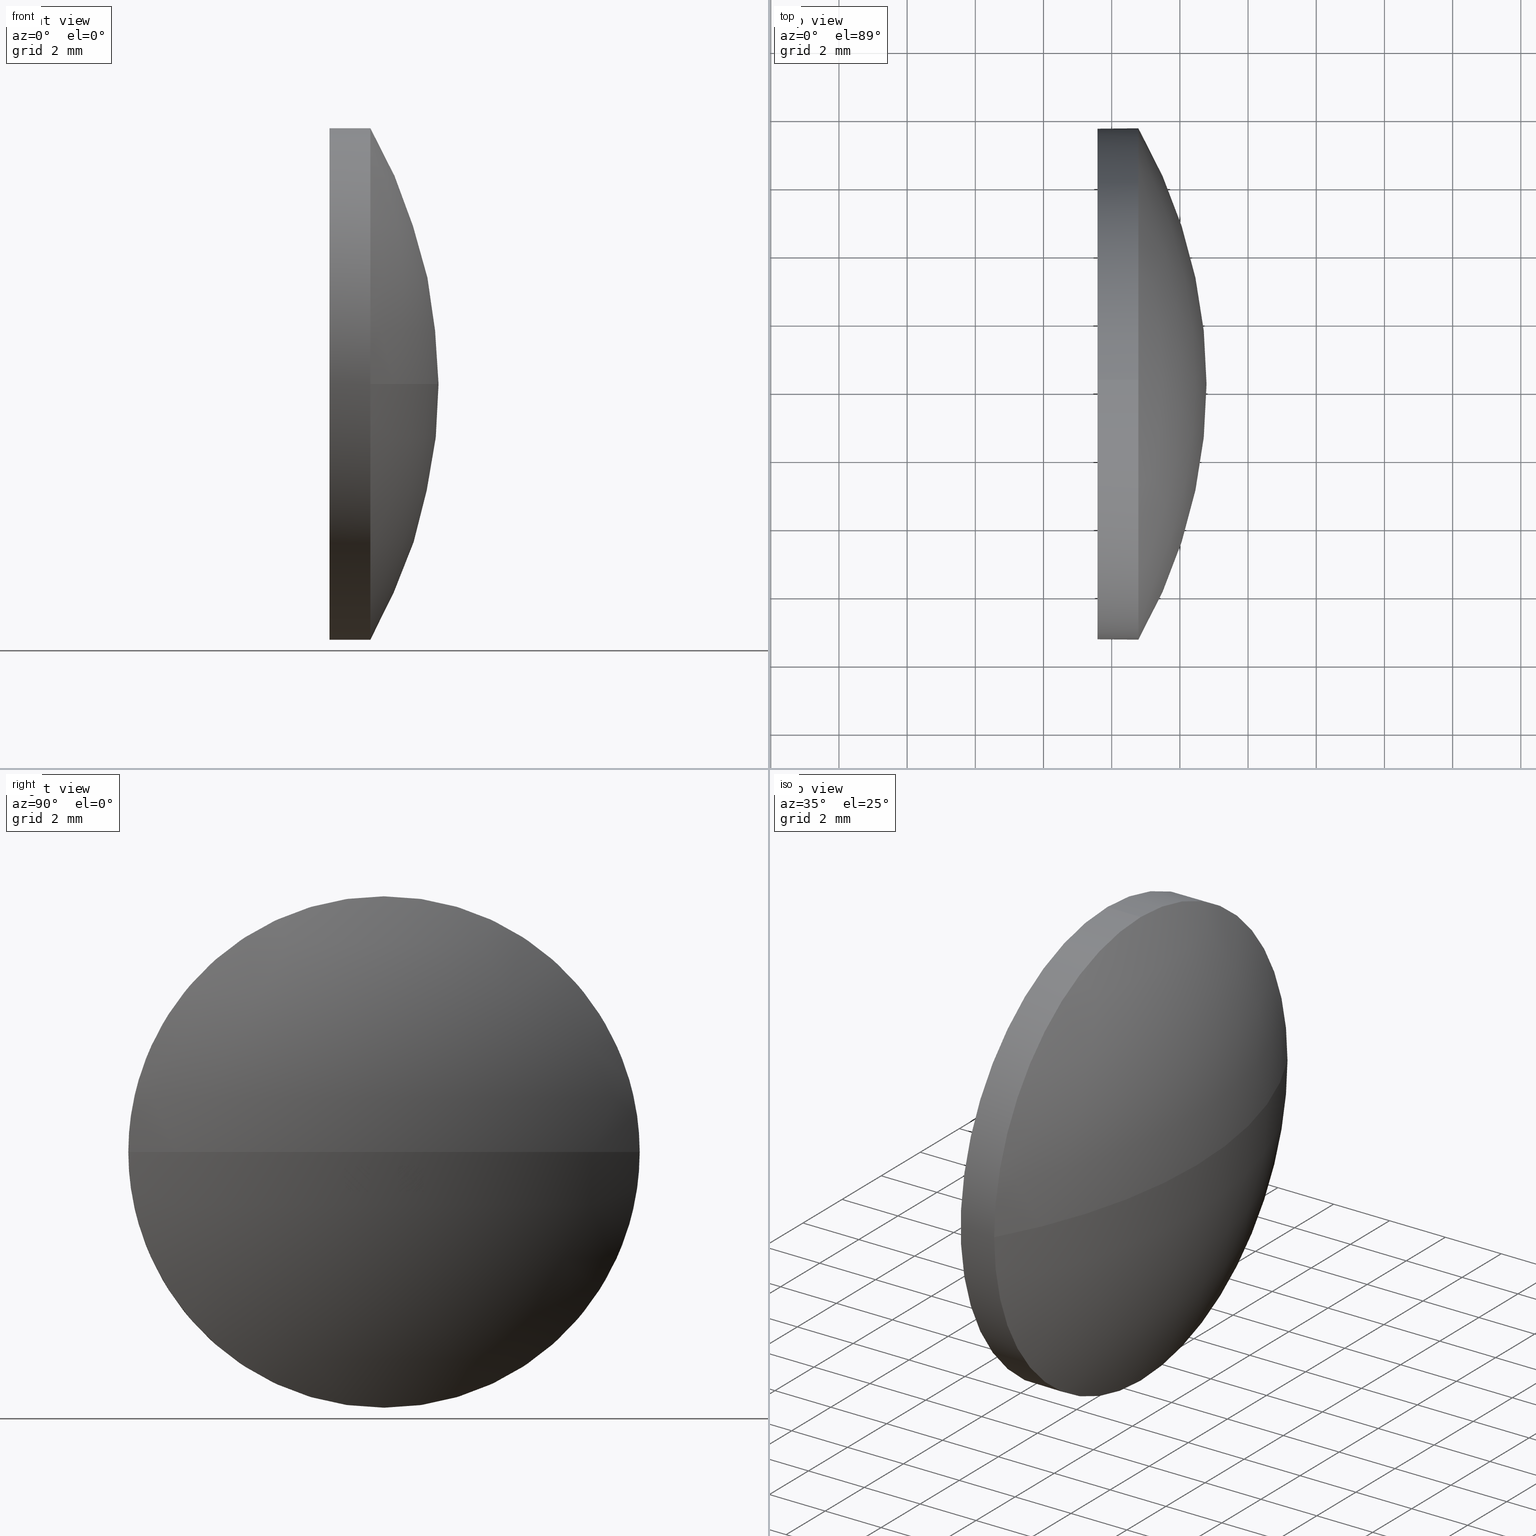
[diagram: canonical four-view strip — front | top / right | iso, engineering-drawing reading convention]
A machine part, canonical four-view strip (front | top / right | iso — engineering-drawing reading convention). The complete STEP part file that produces these views, byte-faithful:
ISO-10303-21;
HEADER;
FILE_DESCRIPTION (( 'STEP AP214' ),
    '1' );
FILE_NAME ('100370.STEP',
    '2019-06-04T06:10:40',
    ( '' ),
    ( '' ),
    'SwSTEP 2.0',
    'SolidWorks 2016',
    '' );
FILE_SCHEMA (( 'AUTOMOTIVE_DESIGN' ));
ENDSEC;

DATA;
#1 = AXIS2_PLACEMENT_3D ( 'NONE', #91, #90, #76 ) ;
#2 = FILL_AREA_STYLE ('',( #14 ) ) ;
#3 = COLOUR_RGB ( '',1.000000000000000000, 1.000000000000000000, 1.000000000000000000 ) ;
#4 = ORIENTED_EDGE ( 'NONE', *, *, #164, .F. ) ;
#5 = AXIS2_PLACEMENT_3D ( 'NONE', #172, #118, #174 ) ;
#6 = ORIENTED_EDGE ( 'NONE', *, *, #181, .T. ) ;
#7 = UNCERTAINTY_MEASURE_WITH_UNIT (LENGTH_MEASURE( 1.000000000000000100E-005 ), #159, 'distance_accuracy_value', 'NONE');
#8 = ORIENTED_EDGE ( 'NONE', *, *, #181, .F. ) ;
#9 = ADVANCED_FACE ( 'NONE', ( #22 ), #119, .T. ) ;
#10 = APPLICATION_PROTOCOL_DEFINITION ( 'draft international standard', 'automotive_design', 1998, #141 ) ;
#11 = DIRECTION ( 'NONE',  ( 0.0000000000000000000, 0.0000000000000000000, 1.000000000000000000 ) ) ;
#12 = CIRCLE ( 'NONE', #170, 7.500000000000007100 ) ;
#13 = FILL_AREA_STYLE_COLOUR ( '', #85 ) ;
#14 = FILL_AREA_STYLE_COLOUR ( '', #3 ) ;
#15 = DIRECTION ( 'NONE',  ( 0.0000000000000000000, 0.0000000000000000000, 1.000000000000000000 ) ) ;
#16 = PRESENTATION_LAYER_ASSIGNMENT (  '', '', ( #123 ) ) ;
#17 = SPHERICAL_SURFACE ( 'NONE', #105, 15.06249999999997500 ) ;
#18 = VERTEX_POINT ( 'NONE', #121 ) ;
#19 = LINE ( 'NONE', #143, #169 ) ;
#20 = AXIS2_PLACEMENT_3D ( 'NONE', #186, #134, #32 ) ;
#21 = VECTOR ( 'NONE', #61, 1000.000000000000000 ) ;
#22 = FACE_OUTER_BOUND ( 'NONE', #86, .T. ) ;
#23 =( NAMED_UNIT ( * ) PLANE_ANGLE_UNIT ( ) SI_UNIT ( $, .RADIAN. ) );
#24 = MECHANICAL_DESIGN_GEOMETRIC_PRESENTATION_REPRESENTATION (  '', ( #64 ), #49 ) ;
#25 = CARTESIAN_POINT ( 'NONE',  ( 453.7196324568757900, 58.16787172714014500, 0.0000000000000000000 ) ) ;
#26 = APPLICATION_PROTOCOL_DEFINITION ( 'draft international standard', 'automotive_design', 1998, #110 ) ;
#27 = CARTESIAN_POINT ( 'NONE',  ( 468.7821324568757900, 58.16787172714014500, 0.0000000000000000000 ) ) ;
#28 = VERTEX_POINT ( 'NONE', #161 ) ;
#29 = CARTESIAN_POINT ( 'NONE',  ( 465.5821324568758000, 58.16787172714012400, 0.0000000000000000000 ) ) ;
#30 = PRODUCT_DEFINITION_FORMATION_WITH_SPECIFIED_SOURCE ( '�κ�', '', #103, .NOT_KNOWN. ) ;
#31 = SURFACE_STYLE_FILL_AREA ( #78 ) ;
#32 = DIRECTION ( 'NONE',  ( 0.0000000000000000000, 0.0000000000000000000, 1.000000000000000000 ) ) ;
#33 = VERTEX_POINT ( 'NONE', #79 ) ;
#34 = MECHANICAL_DESIGN_GEOMETRIC_PRESENTATION_REPRESENTATION (  '', ( #123 ), #129 ) ;
#35 = SPHERICAL_SURFACE ( 'NONE', #178, 15.06249999999997500 ) ;
#36 = AXIS2_PLACEMENT_3D ( 'NONE', #113, #111, #65 ) ;
#37 = CARTESIAN_POINT ( 'NONE',  ( 453.7196324568757900, 58.16787172714014500, 0.0000000000000000000 ) ) ;
#38 = EDGE_CURVE ( 'NONE', #62, #28, #175, .T. ) ;
#39 = ADVANCED_FACE ( 'NONE', ( #137 ), #35, .T. ) ;
#40 = DIRECTION ( 'NONE',  ( -1.000000000000000000, -0.0000000000000000000, -0.0000000000000000000 ) ) ;
#41 = EDGE_LOOP ( 'NONE', ( #4, #54, #114, #55 ) ) ;
#42 = UNCERTAINTY_MEASURE_WITH_UNIT (LENGTH_MEASURE( 1.000000000000000100E-005 ), #120, 'distance_accuracy_value', 'NONE');
#43 = PLANE ( 'NONE',  #138 ) ;
#44 = EDGE_CURVE ( 'NONE', #102, #88, #19, .T. ) ;
#45 = DIRECTION ( 'NONE',  ( 0.0000000000000000000, -1.000000000000000000, -1.224646799147353500E-016 ) ) ;
#46 = LINE ( 'NONE', #116, #21 ) ;
#47 = ORIENTED_EDGE ( 'NONE', *, *, #44, .F. ) ;
#48 = DIRECTION ( 'NONE',  ( 0.0000000000000000000, -1.000000000000000000, 0.0000000000000000000 ) ) ;
#49 =( GEOMETRIC_REPRESENTATION_CONTEXT ( 3 ) GLOBAL_UNCERTAINTY_ASSIGNED_CONTEXT ( ( #75 ) ) GLOBAL_UNIT_ASSIGNED_CONTEXT ( ( #99, #173, #68 ) ) REPRESENTATION_CONTEXT ( 'NONE', 'WORKASPACE' ) );
#50 = ORIENTED_EDGE ( 'NONE', *, *, #53, .T. ) ;
#51 = DIRECTION ( 'NONE',  ( -1.000000000000000000, -0.0000000000000000000, -0.0000000000000000000 ) ) ;
#52 = AXIS2_PLACEMENT_3D ( 'NONE', #176, #144, #97 ) ;
#53 = EDGE_CURVE ( 'NONE', #28, #102, #149, .T. ) ;
#54 = ORIENTED_EDGE ( 'NONE', *, *, #38, .T. ) ;
#55 = ORIENTED_EDGE ( 'NONE', *, *, #87, .F. ) ;
#56 = PRODUCT_DEFINITION_CONTEXT ( 'detailed design', #110, 'design' ) ;
#57 = SURFACE_STYLE_USAGE ( .BOTH. , #81 ) ;
#58 = AXIS2_PLACEMENT_3D ( 'NONE', #122, #133, #63 ) ;
#59 =( NAMED_UNIT ( * ) SI_UNIT ( $, .STERADIAN. ) SOLID_ANGLE_UNIT ( ) );
#60 = MANIFOLD_SOLID_BREP ( '��ת1', #147 ) ;
#61 = DIRECTION ( 'NONE',  ( -1.000000000000000000, -0.0000000000000000000, -0.0000000000000000000 ) ) ;
#62 = VERTEX_POINT ( 'NONE', #27 ) ;
#63 = DIRECTION ( 'NONE',  ( 0.0000000000000000000, 0.0000000000000000000, 1.000000000000000000 ) ) ;
#64 = STYLED_ITEM ( 'NONE', ( #185 ), #60 ) ;
#65 = DIRECTION ( 'NONE',  ( 0.0000000000000000000, 0.0000000000000000000, 1.000000000000000000 ) ) ;
#66 = EDGE_CURVE ( 'NONE', #18, #28, #179, .T. ) ;
#67 = ORIENTED_EDGE ( 'NONE', *, *, #53, .F. ) ;
#68 =( NAMED_UNIT ( * ) SI_UNIT ( $, .STERADIAN. ) SOLID_ANGLE_UNIT ( ) );
#69 = DIRECTION ( 'NONE',  ( 0.0000000000000000000, 0.0000000000000000000, 1.000000000000000000 ) ) ;
#70 = FACE_OUTER_BOUND ( 'NONE', #124, .T. ) ;
#71 = EDGE_LOOP ( 'NONE', ( #128, #139, #125, #67 ) ) ;
#72 = PRODUCT_RELATED_PRODUCT_CATEGORY ( 'part', '', ( #103 ) ) ;
#73 =( NAMED_UNIT ( * ) PLANE_ANGLE_UNIT ( ) SI_UNIT ( $, .RADIAN. ) );
#74 = ADVANCED_FACE ( 'NONE', ( #168 ), #158, .T. ) ;
#75 = UNCERTAINTY_MEASURE_WITH_UNIT (LENGTH_MEASURE( 1.000000000000000100E-005 ), #99, 'distance_accuracy_value', 'NONE');
#76 = DIRECTION ( 'NONE',  ( 1.000000000000000000, 0.0000000000000000000, 0.0000000000000000000 ) ) ;
#77 = EDGE_CURVE ( 'NONE', #102, #33, #12, .T. ) ;
#78 = FILL_AREA_STYLE ('',( #13 ) ) ;
#79 = CARTESIAN_POINT ( 'NONE',  ( 466.7821324568757900, 65.66787172714012400, 9.184850993605132200E-016 ) ) ;
#80 = EDGE_CURVE ( 'NONE', #166, #88, #150, .T. ) ;
#81 = SURFACE_SIDE_STYLE ('',( #31 ) ) ;
#82 = CARTESIAN_POINT ( 'NONE',  ( 453.7196324568757900, 58.16787172714014500, 0.0000000000000000000 ) ) ;
#83 = ORIENTED_EDGE ( 'NONE', *, *, #80, .T. ) ;
#84 = CARTESIAN_POINT ( 'NONE',  ( 466.7821324568757900, 58.16787172714012400, 0.0000000000000000000 ) ) ;
#85 = COLOUR_RGB ( '',1.000000000000000000, 1.000000000000000000, 1.000000000000000000 ) ;
#86 = EDGE_LOOP ( 'NONE', ( #182, #160, #50, #156, #101 ) ) ;
#87 = EDGE_CURVE ( 'NONE', #33, #18, #165, .T. ) ;
#88 = VERTEX_POINT ( 'NONE', #132 ) ;
#89 = PRESENTATION_STYLE_ASSIGNMENT (( #57 ) ) ;
#90 = DIRECTION ( 'NONE',  ( 0.0000000000000000000, 0.0000000000000000000, 1.000000000000000000 ) ) ;
#91 = CARTESIAN_POINT ( 'NONE',  ( 0.0000000000000000000, 0.0000000000000000000, 0.0000000000000000000 ) ) ;
#92 = SHAPE_DEFINITION_REPRESENTATION ( #126, #127 ) ;
#93 =( NAMED_UNIT ( * ) SI_UNIT ( $, .STERADIAN. ) SOLID_ANGLE_UNIT ( ) );
#94 = SURFACE_STYLE_USAGE ( .BOTH. , #177 ) ;
#95 = ORIENTED_EDGE ( 'NONE', *, *, #87, .T. ) ;
#96 = DIRECTION ( 'NONE',  ( 0.0000000000000000000, 0.0000000000000000000, 1.000000000000000000 ) ) ;
#97 = DIRECTION ( 'NONE',  ( -1.000000000000000000, 0.0000000000000000000, 0.0000000000000000000 ) ) ;
#98 = AXIS2_PLACEMENT_3D ( 'NONE', #135, #162, #142 ) ;
#99 =( LENGTH_UNIT ( ) NAMED_UNIT ( * ) SI_UNIT ( .MILLI., .METRE. ) );
#100 = CIRCLE ( 'NONE', #5, 7.500000000000007100 ) ;
#101 = ORIENTED_EDGE ( 'NONE', *, *, #80, .F. ) ;
#102 = VERTEX_POINT ( 'NONE', #157 ) ;
#103 = PRODUCT ( '100370', '100370', '', ( #107 ) ) ;
#104 = SURFACE_STYLE_FILL_AREA ( #2 ) ;
#105 = AXIS2_PLACEMENT_3D ( 'NONE', #37, #184, #117 ) ;
#106 = CARTESIAN_POINT ( 'NONE',  ( 465.5821324568758000, 58.16787172714012400, 0.0000000000000000000 ) ) ;
#107 = PRODUCT_CONTEXT ( 'NONE', #141, 'mechanical' ) ;
#108 = FACE_OUTER_BOUND ( 'NONE', #71, .T. ) ;
#109 = DIRECTION ( 'NONE',  ( 1.000000000000000000, 0.0000000000000000000, 0.0000000000000000000 ) ) ;
#110 = APPLICATION_CONTEXT ( 'automotive_design' ) ;
#111 = DIRECTION ( 'NONE',  ( -1.000000000000000000, -0.0000000000000000000, -0.0000000000000000000 ) ) ;
#112 = EDGE_CURVE ( 'NONE', #18, #166, #46, .T. ) ;
#113 = CARTESIAN_POINT ( 'NONE',  ( 466.7821324568757900, 58.16787172714012400, 0.0000000000000000000 ) ) ;
#114 = ORIENTED_EDGE ( 'NONE', *, *, #66, .F. ) ;
#115 = ORIENTED_EDGE ( 'NONE', *, *, #112, .T. ) ;
#116 = CARTESIAN_POINT ( 'NONE',  ( 462.7413203261423300, 58.16787172714012400, -7.500000000000007100 ) ) ;
#117 = DIRECTION ( 'NONE',  ( 0.0000000000000000000, -1.000000000000000000, 0.0000000000000000000 ) ) ;
#118 = DIRECTION ( 'NONE',  ( -1.000000000000000000, -0.0000000000000000000, -0.0000000000000000000 ) ) ;
#119 = CYLINDRICAL_SURFACE ( 'NONE', #98, 7.500000000000007100 ) ;
#120 =( LENGTH_UNIT ( ) NAMED_UNIT ( * ) SI_UNIT ( .MILLI., .METRE. ) );
#121 = CARTESIAN_POINT ( 'NONE',  ( 466.7821324568757900, 58.16787172714012400, -7.500000000000007100 ) ) ;
#122 = CARTESIAN_POINT ( 'NONE',  ( 462.7413203261423300, 58.16787172714012400, 0.0000000000000000000 ) ) ;
#123 = STYLED_ITEM ( 'NONE', ( #89 ), #127 ) ;
#124 = EDGE_LOOP ( 'NONE', ( #6, #83 ) ) ;
#125 = ORIENTED_EDGE ( 'NONE', *, *, #77, .F. ) ;
#126 = PRODUCT_DEFINITION_SHAPE ( 'NONE', 'NONE',  #153 ) ;
#127 = ADVANCED_BREP_SHAPE_REPRESENTATION ( '100370', ( #60, #1 ), #183 ) ;
#128 = ORIENTED_EDGE ( 'NONE', *, *, #38, .F. ) ;
#129 =( GEOMETRIC_REPRESENTATION_CONTEXT ( 3 ) GLOBAL_UNCERTAINTY_ASSIGNED_CONTEXT ( ( #42 ) ) GLOBAL_UNIT_ASSIGNED_CONTEXT ( ( #120, #73, #59 ) ) REPRESENTATION_CONTEXT ( 'NONE', 'WORKASPACE' ) );
#130 = DIRECTION ( 'NONE',  ( 0.0000000000000000000, 0.0000000000000000000, -1.000000000000000000 ) ) ;
#131 = CARTESIAN_POINT ( 'NONE',  ( 465.5821324568758000, 58.16787172714012400, -7.500000000000007100 ) ) ;
#132 = CARTESIAN_POINT ( 'NONE',  ( 465.5821324568758000, 58.16787172714012400, 7.500000000000007100 ) ) ;
#133 = DIRECTION ( 'NONE',  ( -1.000000000000000000, -0.0000000000000000000, -0.0000000000000000000 ) ) ;
#134 = DIRECTION ( 'NONE',  ( -1.000000000000000000, -0.0000000000000000000, -0.0000000000000000000 ) ) ;
#135 = CARTESIAN_POINT ( 'NONE',  ( 462.7413203261423300, 58.16787172714012400, 0.0000000000000000000 ) ) ;
#136 = DIRECTION ( 'NONE',  ( -1.000000000000000000, -0.0000000000000000000, -0.0000000000000000000 ) ) ;
#137 = FACE_OUTER_BOUND ( 'NONE', #41, .T. ) ;
#138 = AXIS2_PLACEMENT_3D ( 'NONE', #106, #109, #130 ) ;
#139 = ORIENTED_EDGE ( 'NONE', *, *, #164, .T. ) ;
#140 = AXIS2_PLACEMENT_3D ( 'NONE', #29, #51, #69 ) ;
#141 = APPLICATION_CONTEXT ( 'automotive_design' ) ;
#142 = DIRECTION ( 'NONE',  ( 0.0000000000000000000, 0.0000000000000000000, 1.000000000000000000 ) ) ;
#143 = CARTESIAN_POINT ( 'NONE',  ( 462.7413203261423300, 58.16787172714012400, 7.500000000000007100 ) ) ;
#144 = DIRECTION ( 'NONE',  ( 0.0000000000000000000, 0.0000000000000000000, -1.000000000000000000 ) ) ;
#145 = AXIS2_PLACEMENT_3D ( 'NONE', #171, #40, #11 ) ;
#146 = CIRCLE ( 'NONE', #148, 15.06249999999997200 ) ;
#147 = CLOSED_SHELL ( 'NONE', ( #74, #155, #39, #9, #152 ) ) ;
#148 = AXIS2_PLACEMENT_3D ( 'NONE', #25, #154, #45 ) ;
#149 = CIRCLE ( 'NONE', #36, 7.500000000000007100 ) ;
#150 = CIRCLE ( 'NONE', #140, 7.500000000000007100 ) ;
#151 = ORIENTED_EDGE ( 'NONE', *, *, #77, .T. ) ;
#152 = ADVANCED_FACE ( 'NONE', ( #70 ), #43, .F. ) ;
#153 = PRODUCT_DEFINITION ( 'δ֪', '', #30, #56 ) ;
#154 = DIRECTION ( 'NONE',  ( 0.0000000000000000000, -1.224646799147353200E-016, 1.000000000000000000 ) ) ;
#155 = ADVANCED_FACE ( 'NONE', ( #108 ), #17, .T. ) ;
#156 = ORIENTED_EDGE ( 'NONE', *, *, #44, .T. ) ;
#157 = CARTESIAN_POINT ( 'NONE',  ( 466.7821324568757900, 58.16787172714012400, 7.500000000000007100 ) ) ;
#158 = CYLINDRICAL_SURFACE ( 'NONE', #58, 7.500000000000007100 ) ;
#159 =( LENGTH_UNIT ( ) NAMED_UNIT ( * ) SI_UNIT ( .MILLI., .METRE. ) );
#160 = ORIENTED_EDGE ( 'NONE', *, *, #66, .T. ) ;
#161 = CARTESIAN_POINT ( 'NONE',  ( 466.7821324568757900, 50.66787172714013100, 0.0000000000000000000 ) ) ;
#162 = DIRECTION ( 'NONE',  ( -1.000000000000000000, -0.0000000000000000000, -0.0000000000000000000 ) ) ;
#163 = DIRECTION ( 'NONE',  ( -1.000000000000000000, -0.0000000000000000000, -0.0000000000000000000 ) ) ;
#164 = EDGE_CURVE ( 'NONE', #62, #33, #146, .T. ) ;
#165 = CIRCLE ( 'NONE', #145, 7.500000000000007100 ) ;
#166 = VERTEX_POINT ( 'NONE', #131 ) ;
#167 = PRESENTATION_LAYER_ASSIGNMENT (  '', '', ( #64 ) ) ;
#168 = FACE_OUTER_BOUND ( 'NONE', #180, .T. ) ;
#169 = VECTOR ( 'NONE', #163, 1000.000000000000000 ) ;
#170 = AXIS2_PLACEMENT_3D ( 'NONE', #84, #136, #15 ) ;
#171 = CARTESIAN_POINT ( 'NONE',  ( 466.7821324568757900, 58.16787172714012400, 0.0000000000000000000 ) ) ;
#172 = CARTESIAN_POINT ( 'NONE',  ( 465.5821324568758000, 58.16787172714012400, 0.0000000000000000000 ) ) ;
#173 =( NAMED_UNIT ( * ) PLANE_ANGLE_UNIT ( ) SI_UNIT ( $, .RADIAN. ) );
#174 = DIRECTION ( 'NONE',  ( 0.0000000000000000000, 0.0000000000000000000, 1.000000000000000000 ) ) ;
#175 = CIRCLE ( 'NONE', #52, 15.06249999999997900 ) ;
#176 = CARTESIAN_POINT ( 'NONE',  ( 453.7196324568757900, 58.16787172714014500, 0.0000000000000000000 ) ) ;
#177 = SURFACE_SIDE_STYLE ('',( #104 ) ) ;
#178 = AXIS2_PLACEMENT_3D ( 'NONE', #82, #96, #48 ) ;
#179 = CIRCLE ( 'NONE', #20, 7.500000000000007100 ) ;
#180 = EDGE_LOOP ( 'NONE', ( #95, #115, #8, #47, #151 ) ) ;
#181 = EDGE_CURVE ( 'NONE', #88, #166, #100, .T. ) ;
#182 = ORIENTED_EDGE ( 'NONE', *, *, #112, .F. ) ;
#183 =( GEOMETRIC_REPRESENTATION_CONTEXT ( 3 ) GLOBAL_UNCERTAINTY_ASSIGNED_CONTEXT ( ( #7 ) ) GLOBAL_UNIT_ASSIGNED_CONTEXT ( ( #159, #23, #93 ) ) REPRESENTATION_CONTEXT ( 'NONE', 'WORKASPACE' ) );
#184 = DIRECTION ( 'NONE',  ( 0.0000000000000000000, 0.0000000000000000000, 1.000000000000000000 ) ) ;
#185 = PRESENTATION_STYLE_ASSIGNMENT (( #94 ) ) ;
#186 = CARTESIAN_POINT ( 'NONE',  ( 466.7821324568757900, 58.16787172714012400, 0.0000000000000000000 ) ) ;
ENDSEC;
END-ISO-10303-21;
